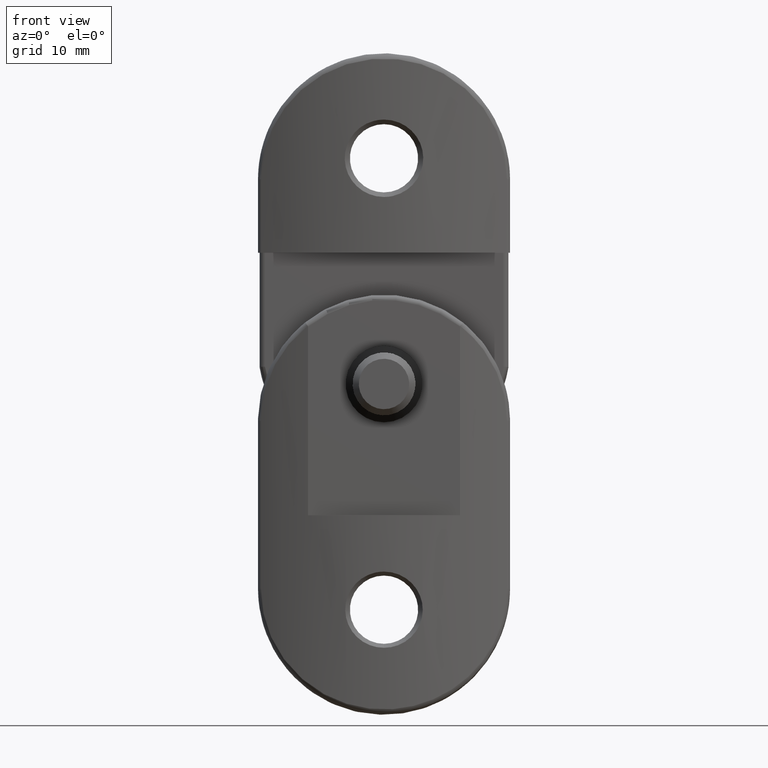
[diagram: clean part render]
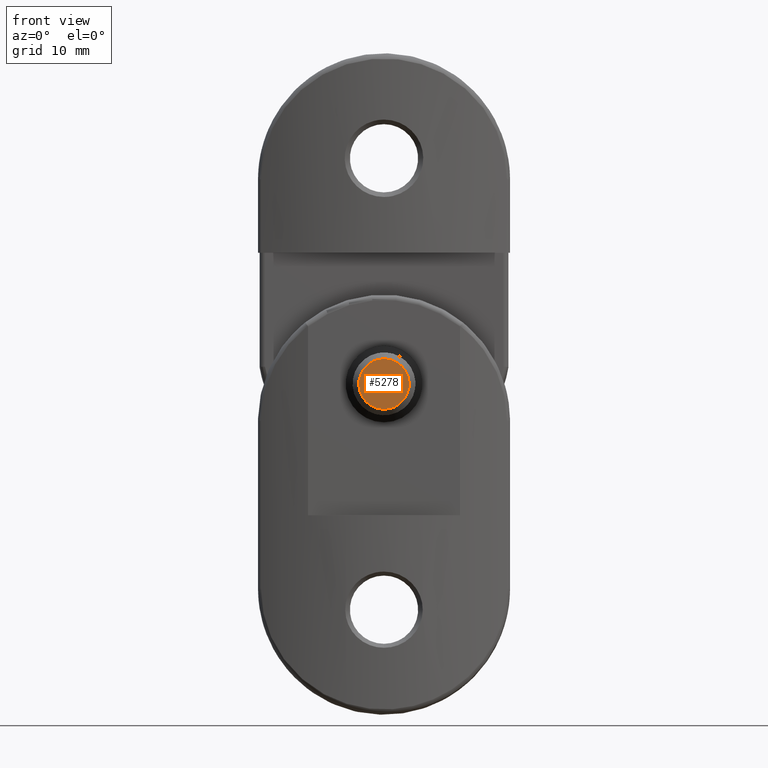
[diagram: same view with one face highlighted and labeled with its STEP entity id]
A machine part, front view. The second image highlights one B-rep face of the part: STEP entity #5278.
In plain terms, the highlighted planar face has unit normal (0, -1, -0).
Its self-contained STEP definition (entity closure, byte-faithful):
#313 = CARTESIAN_POINT ( 'NONE',  ( 0.000000000000000000, -1.714505518806294638E-15, 14.00000000000000000 ) ) ;
#1742 = CARTESIAN_POINT ( 'NONE',  ( 0.000000000000000000, -1.714505518806294638E-15, 14.00000000000000000 ) ) ;
#2155 = DIRECTION ( 'NONE',  ( 0.000000000000000000, -1.224646799147353207E-16, 1.000000000000000000 ) ) ;
#2845 = EDGE_CURVE ( 'NONE', #18142, #6861, #9086, .T. ) ;
#3020 = AXIS2_PLACEMENT_3D ( 'NONE', #16354, #19571, #17914 ) ;
#3739 = DIRECTION ( 'NONE',  ( 0.000000000000000000, -1.000000000000000000, -1.224646799147353207E-16 ) ) ;
#5278 = ADVANCED_FACE ( 'NONE', ( #7719 ), #12227, .T. ) ;
#5804 = ORIENTED_EDGE ( 'NONE', *, *, #21299, .T. ) ;
#6861 = VERTEX_POINT ( 'NONE', #12855 ) ;
#7497 = AXIS2_PLACEMENT_3D ( 'NONE', #1742, #20431, #10300 ) ;
#7719 = FACE_OUTER_BOUND ( 'NONE', #14263, .T. ) ;
#9086 = CIRCLE ( 'NONE', #7497, 2.399999999999993694 ) ;
#10300 = DIRECTION ( 'NONE',  ( 0.000000000000000000, -1.000000000000000000, 0.000000000000000000 ) ) ;
#12179 = AXIS2_PLACEMENT_3D ( 'NONE', #313, #2155, #3739 ) ;
#12227 = PLANE ( 'NONE',  #12179 ) ;
#12855 = CARTESIAN_POINT ( 'NONE',  ( 3.306546357697847324E-16, -2.399999999999995470, 14.00000000000000000 ) ) ;
#14263 = EDGE_LOOP ( 'NONE', ( #15491, #5804 ) ) ;
#15491 = ORIENTED_EDGE ( 'NONE', *, *, #2845, .T. ) ;
#16354 = CARTESIAN_POINT ( 'NONE',  ( 0.000000000000000000, -1.714505518806294638E-15, 14.00000000000000000 ) ) ;
#16590 = CARTESIAN_POINT ( 'NONE',  ( 0.000000000000000000, 2.399999999999991918, 14.00000000000000000 ) ) ;
#17914 = DIRECTION ( 'NONE',  ( 0.000000000000000000, -1.000000000000000000, 0.000000000000000000 ) ) ;
#18142 = VERTEX_POINT ( 'NONE', #16590 ) ;
#19571 = DIRECTION ( 'NONE',  ( 0.000000000000000000, -1.224646799147353207E-16, 1.000000000000000000 ) ) ;
#20431 = DIRECTION ( 'NONE',  ( 0.000000000000000000, -1.224646799147353207E-16, 1.000000000000000000 ) ) ;
#21126 = CIRCLE ( 'NONE', #3020, 2.399999999999993694 ) ;
#21299 = EDGE_CURVE ( 'NONE', #6861, #18142, #21126, .T. ) ;